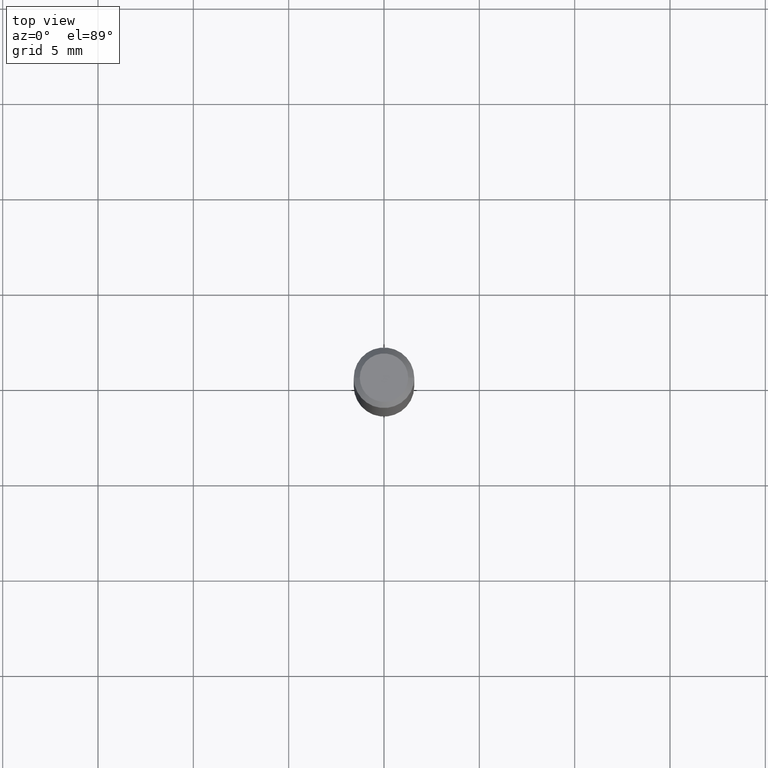
[diagram: clean part render]
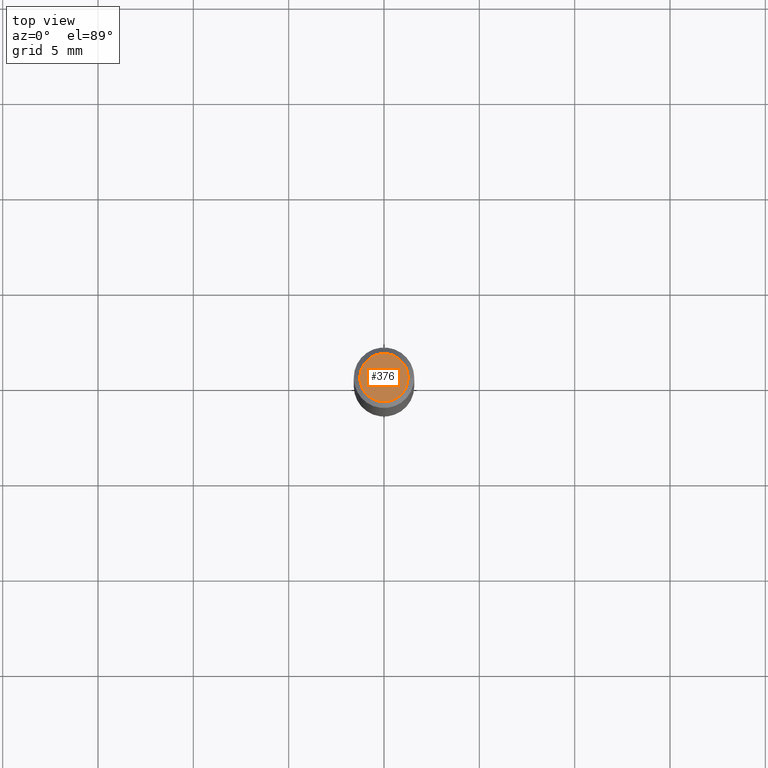
[diagram: same view with one face highlighted and labeled with its STEP entity id]
A machine part, top view. The second image highlights one B-rep face of the part: STEP entity #376.
In plain terms, the highlighted planar face has unit normal (0, -0, -1).
Its self-contained STEP definition (entity closure, byte-faithful):
#13 = PLANE ( 'NONE',  #279 ) ;
#47 = VERTEX_POINT ( 'NONE', #49 ) ;
#49 = CARTESIAN_POINT ( 'NONE',  ( -0.04999999999999999584, 3.709698922520826725E-16, -1.592040838894077649E-18 ) ) ;
#52 = CARTESIAN_POINT ( 'NONE',  ( 3.893286209682126177E-47, -5.558580879666067980E-33, -1.592040838891559689E-18 ) ) ;
#62 = CARTESIAN_POINT ( 'NONE',  ( 1.946643104841063088E-47, -2.779290439833033990E-33, -7.960204194457798443E-19 ) ) ;
#78 = EDGE_CURVE ( 'NONE', #147, #47, #146, .T. ) ;
#87 = AXIS2_PLACEMENT_3D ( 'NONE', #433, #394, #132 ) ;
#88 = CIRCLE ( 'NONE', #87, 0.04999999999999999584 ) ;
#132 = DIRECTION ( 'NONE',  ( 1.000000000000000000, -6.982962677686265922E-15, 4.875957971899673662E-29 ) ) ;
#146 = CIRCLE ( 'NONE', #321, 0.04999999999999999584 ) ;
#147 = VERTEX_POINT ( 'NONE', #355 ) ;
#168 = DIRECTION ( 'NONE',  ( -1.000000000000000000, 6.982962677686265922E-15, -4.876176775795935793E-29 ) ) ;
#224 = ORIENTED_EDGE ( 'NONE', *, *, #237, .T. ) ;
#237 = EDGE_CURVE ( 'NONE', #47, #147, #88, .T. ) ;
#239 = DIRECTION ( 'NONE',  ( -2.445468806185136597E-29, 3.491481338843145583E-15, 1.000000000000000000 ) ) ;
#268 = ORIENTED_EDGE ( 'NONE', *, *, #78, .T. ) ;
#276 = DIRECTION ( 'NONE',  ( 1.000000000000000000, -6.982962677686265922E-15, 4.875957971899673662E-29 ) ) ;
#279 = AXIS2_PLACEMENT_3D ( 'NONE', #62, #319, #168 ) ;
#319 = DIRECTION ( 'NONE',  ( 2.438088387897960049E-29, -3.491481338843145188E-15, -1.000000000000000000 ) ) ;
#321 = AXIS2_PLACEMENT_3D ( 'NONE', #52, #239, #276 ) ;
#355 = CARTESIAN_POINT ( 'NONE',  ( 0.04999999999999999584, -4.077247707424184705E-16, -1.592040838888913461E-18 ) ) ;
#376 = ADVANCED_FACE ( 'NONE', ( #472 ), #13, .F. ) ;
#394 = DIRECTION ( 'NONE',  ( -2.445468806185136597E-29, 3.491481338843145583E-15, 1.000000000000000000 ) ) ;
#433 = CARTESIAN_POINT ( 'NONE',  ( 3.893286209682126177E-47, -5.558580879666067980E-33, -1.592040838891559689E-18 ) ) ;
#459 = EDGE_LOOP ( 'NONE', ( #224, #268 ) ) ;
#472 = FACE_OUTER_BOUND ( 'NONE', #459, .T. ) ;